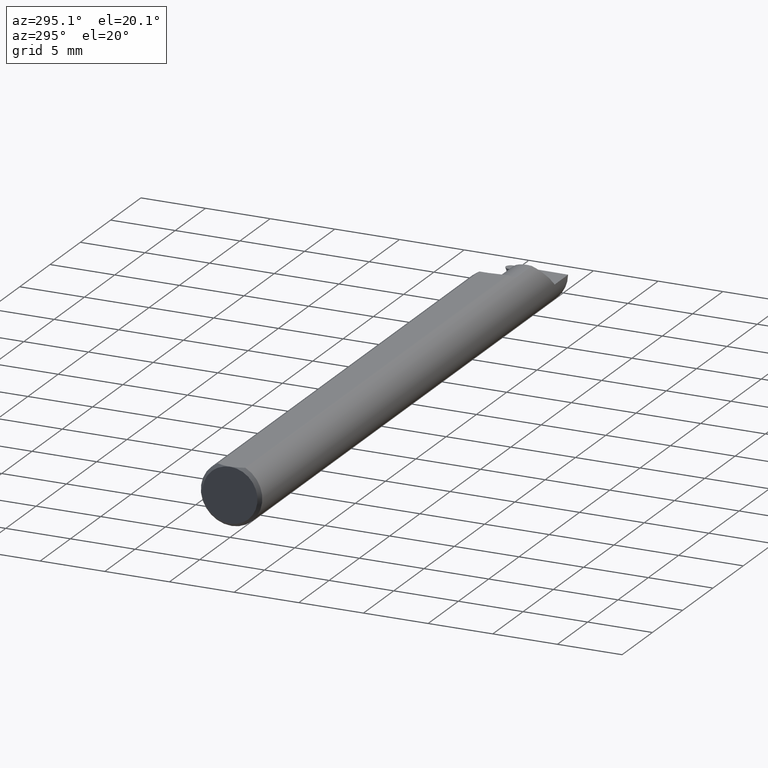
[diagram: clean part render]
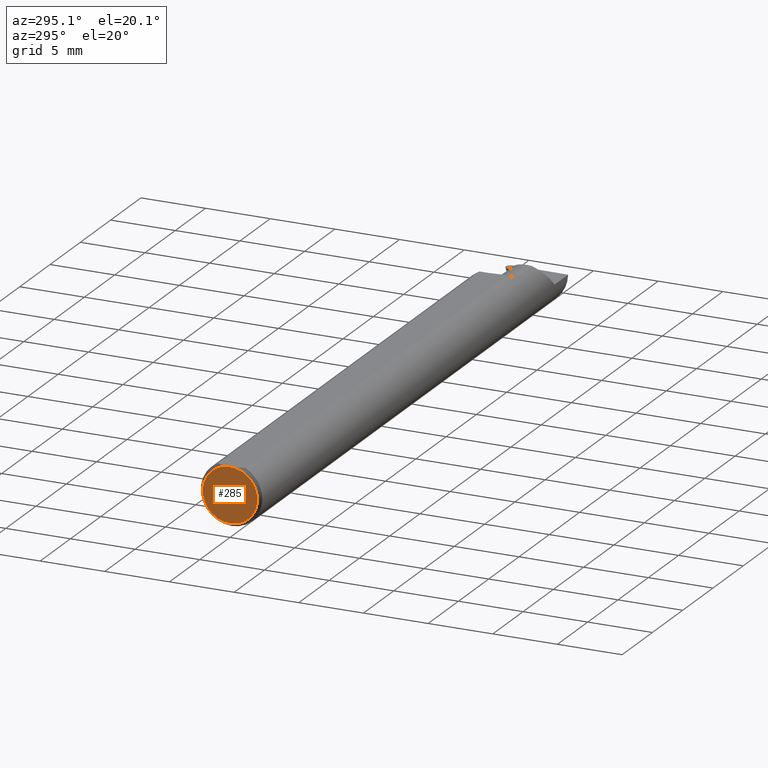
[diagram: same view with one face highlighted and labeled with its STEP entity id]
A machine part, auxiliary view. The second image highlights one B-rep face of the part: STEP entity #285.
In plain terms, the highlighted planar face has unit normal (1, 0, 0).
Its self-contained STEP definition (entity closure, byte-faithful):
#5 = VERTEX_POINT ( 'NONE', #680 ) ;
#90 = AXIS2_PLACEMENT_3D ( 'NONE', #121, #600, #444 ) ;
#110 = DIRECTION ( 'NONE',  ( -1.000000000000000000, -0.000000000000000000, -0.000000000000000000 ) ) ;
#121 = CARTESIAN_POINT ( 'NONE',  ( 0.000000000000000000, 0.000000000000000000, 0.000000000000000000 ) ) ;
#143 = CARTESIAN_POINT ( 'NONE',  ( 0.000000000000000000, 0.000000000000000000, 0.08359999999999991049 ) ) ;
#145 = EDGE_CURVE ( 'NONE', #373, #5, #371, .T. ) ;
#259 = CARTESIAN_POINT ( 'NONE',  ( 0.000000000000000000, 0.000000000000000000, 0.000000000000000000 ) ) ;
#285 = ADVANCED_FACE ( 'NONE', ( #594 ), #551, .F. ) ;
#355 = DIRECTION ( 'NONE',  ( -1.000000000000000000, -0.000000000000000000, -0.000000000000000000 ) ) ;
#369 = CIRCLE ( 'NONE', #636, 0.08359999999999989662 ) ;
#371 = CIRCLE ( 'NONE', #699, 0.08359999999999989662 ) ;
#373 = VERTEX_POINT ( 'NONE', #143 ) ;
#433 = EDGE_LOOP ( 'NONE', ( #448, #460 ) ) ;
#444 = DIRECTION ( 'NONE',  ( 0.000000000000000000, 0.000000000000000000, -1.000000000000000000 ) ) ;
#448 = ORIENTED_EDGE ( 'NONE', *, *, #145, .T. ) ;
#460 = ORIENTED_EDGE ( 'NONE', *, *, #506, .T. ) ;
#506 = EDGE_CURVE ( 'NONE', #5, #373, #369, .T. ) ;
#551 = PLANE ( 'NONE',  #90 ) ;
#594 = FACE_OUTER_BOUND ( 'NONE', #433, .T. ) ;
#600 = DIRECTION ( 'NONE',  ( 1.000000000000000000, 0.000000000000000000, 0.000000000000000000 ) ) ;
#621 = CARTESIAN_POINT ( 'NONE',  ( 0.000000000000000000, 0.000000000000000000, 0.000000000000000000 ) ) ;
#623 = DIRECTION ( 'NONE',  ( 0.000000000000000000, 0.000000000000000000, -1.000000000000000000 ) ) ;
#636 = AXIS2_PLACEMENT_3D ( 'NONE', #621, #355, #623 ) ;
#680 = CARTESIAN_POINT ( 'NONE',  ( 0.000000000000000000, 0.000000000000000000, -0.08359999999999989662 ) ) ;
#697 = DIRECTION ( 'NONE',  ( 0.000000000000000000, 0.000000000000000000, -1.000000000000000000 ) ) ;
#699 = AXIS2_PLACEMENT_3D ( 'NONE', #259, #110, #697 ) ;